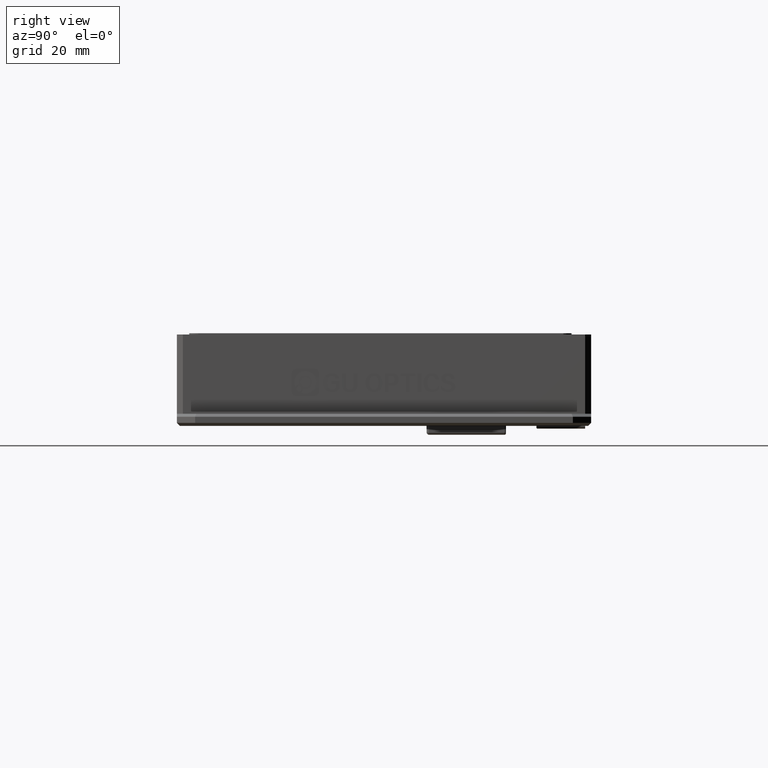
[diagram: clean part render]
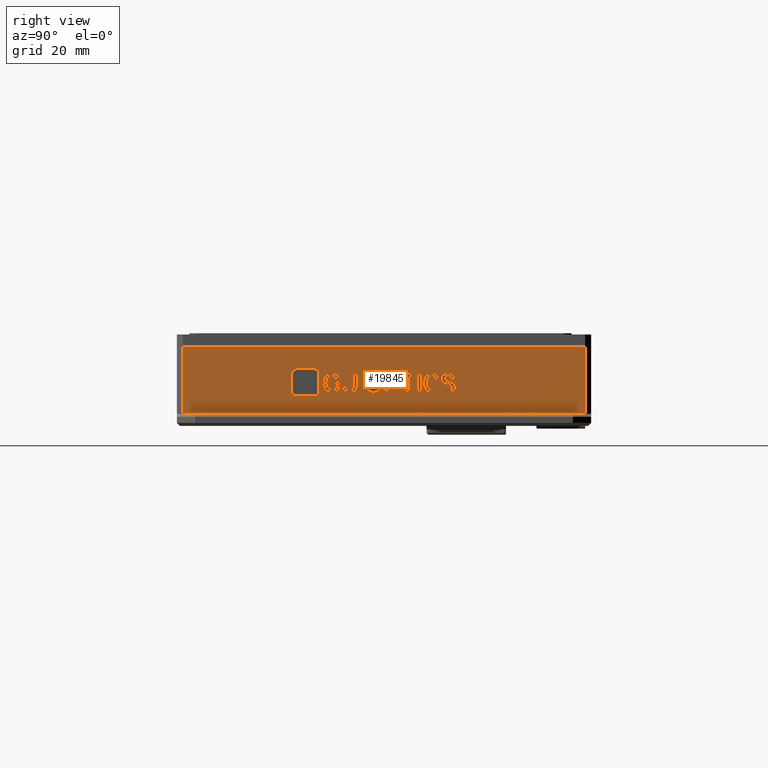
[diagram: same view with one face highlighted and labeled with its STEP entity id]
A machine part, right view. The second image highlights one B-rep face of the part: STEP entity #19845.
In plain terms, the highlighted planar face has unit normal (-1, 0, 0).
Its self-contained STEP definition (entity closure, byte-faithful):
#55 = VERTEX_POINT ( 'NONE', #24676 ) ;
#200 = EDGE_CURVE ( 'NONE', #1160, #15417, #12628, .T. ) ;
#353 = CARTESIAN_POINT ( 'NONE',  ( 24.74226804123710700, 10.97630048354193000, 5.674703011656002400 ) ) ;
#411 = CARTESIAN_POINT ( 'NONE',  ( 24.74226804123710700, 10.68116797948570700, 3.511912313981601800 ) ) ;
#421 = VECTOR ( 'NONE', #28331, 1000.000000000000000 ) ;
#524 = LINE ( 'NONE', #4742, #7741 ) ;
#553 = VERTEX_POINT ( 'NONE', #21872 ) ;
#653 = EDGE_CURVE ( 'NONE', #13729, #15603, #24075, .T. ) ;
#712 = CARTESIAN_POINT ( 'NONE',  ( 24.74226804123710700, -9.694819040525381100, 3.963007500569014400 ) ) ;
#823 = CARTESIAN_POINT ( 'NONE',  ( 24.74226804123710700, 2.931708812368489300, 6.149121616307198200 ) ) ;
#952 = VECTOR ( 'NONE', #27899, 1000.000000000000000 ) ;
#975 = B_SPLINE_CURVE_WITH_KNOTS ( 'NONE', 3,
 ( #4790, #23116, #7872, #29359 ),
 .UNSPECIFIED., .F., .F.,
 ( 4, 4 ),
 ( 10.00000000000000000, 11.00000000000000000 ),
 .UNSPECIFIED. ) ;
#1034 = ORIENTED_EDGE ( 'NONE', *, *, #25771, .F. ) ;
#1150 = CARTESIAN_POINT ( 'NONE',  ( 24.74226804123710700, 9.830816438111909900, 6.609586732586237200 ) ) ;
#1158 = CARTESIAN_POINT ( 'NONE',  ( 24.74226804123710700, 10.41653845001022600, 4.363075104679277900 ) ) ;
#1160 = VERTEX_POINT ( 'NONE', #30057 ) ;
#1291 = CARTESIAN_POINT ( 'NONE',  ( 24.74226804123710700, -6.297387996717750600, 3.511912313981664400 ) ) ;
#1318 = CARTESIAN_POINT ( 'NONE',  ( 24.74226804123710700, 8.333818060610623100, 4.586330918632764800 ) ) ;
#1326 = CARTESIAN_POINT ( 'NONE',  ( 24.74226804123710700, -11.61454908748282100, 7.363286283441060400 ) ) ;
#1367 = ORIENTED_EDGE ( 'NONE', *, *, #8392, .F. ) ;
#1368 = VERTEX_POINT ( 'NONE', #37059 ) ;
#1419 = VECTOR ( 'NONE', #7913, 1000.000000000000000 ) ;
#1420 = CARTESIAN_POINT ( 'NONE',  ( 24.74226804123710700, 5.457046832919928600, 6.567726267469969200 ) ) ;
#1428 = ORIENTED_EDGE ( 'NONE', *, *, #25622, .F. ) ;
#1463 = ORIENTED_EDGE ( 'NONE', *, *, #200, .F. ) ;
#1475 = VERTEX_POINT ( 'NONE', #10273 ) ;
#1519 = VECTOR ( 'NONE', #32084, 1000.000000000000000 ) ;
#1533 = CARTESIAN_POINT ( 'NONE',  ( 24.74226804123710700, -2.301173826896210500, 3.511912313981647000 ) ) ;
#1567 = CARTESIAN_POINT ( 'NONE',  ( 24.74226804123710700, 9.830816438111909900, 6.609586732586237200 ) ) ;
#1595 = EDGE_LOOP ( 'NONE', ( #5593, #33710, #18649, #28209, #18444, #36773, #33213, #28446, #23764, #20439 ) ) ;
#1742 = EDGE_CURVE ( 'NONE', #17232, #21219, #21145, .T. ) ;
#1804 = EDGE_CURVE ( 'NONE', #7755, #27468, #8218, .T. ) ;
#1842 = EDGE_CURVE ( 'NONE', #24166, #9956, #33244, .T. ) ;
#1858 = DIRECTION ( 'NONE',  ( -0.0000000000000000000, -1.000000000000000000, 0.0000000000000000000 ) ) ;
#1859 = CARTESIAN_POINT ( 'NONE',  ( 24.74226804123710700, -6.922212226030724800, 6.567726267470011000 ) ) ;
#1904 = ORIENTED_EDGE ( 'NONE', *, *, #16454, .F. ) ;
#1992 = CARTESIAN_POINT ( 'NONE',  ( 24.74226804123710700, -6.922212226030731900, 4.684005337237489500 ) ) ;
#2041 = CARTESIAN_POINT ( 'NONE',  ( 24.74226804123710700, 8.711292371048839900, 4.070051848865314300 ) ) ;
#2231 = DIRECTION ( 'NONE',  ( -0.0000000000000000000, 3.661440193980301600E-015, 1.000000000000000000 ) ) ;
#2303 = LINE ( 'NONE', #11001, #23857 ) ;
#2313 = CARTESIAN_POINT ( 'NONE',  ( 24.74226804123710700, -5.629243053505096100, 4.153772779097902700 ) ) ;
#2416 = CARTESIAN_POINT ( 'NONE',  ( 24.74226804123710700, 10.41653845001022900, 4.604867965685216700 ) ) ;
#2425 = ORIENTED_EDGE ( 'NONE', *, *, #18802, .F. ) ;
#2584 = ORIENTED_EDGE ( 'NONE', *, *, #7610, .F. ) ;
#2599 = CARTESIAN_POINT ( 'NONE',  ( 24.74226804123710700, 10.37751735752790500, 5.674703011656006000 ) ) ;
#2627 = CARTESIAN_POINT ( 'NONE',  ( 24.74226804123710700, -3.694007791201212100, 5.046796034911871200 ) ) ;
#2635 = B_SPLINE_CURVE_WITH_KNOTS ( 'NONE', 3,
 ( #7557, #25970, #32177, #13693 ),
 .UNSPECIFIED., .F., .F.,
 ( 4, 4 ),
 ( 6.000000000000000000, 7.000000000000000000 ),
 .UNSPECIFIED. ) ;
#2712 = LINE ( 'NONE', #12600, #26270 ) ;
#2756 = EDGE_CURVE ( 'NONE', #15417, #19678, #39628, .T. ) ;
#2760 = CARTESIAN_POINT ( 'NONE',  ( 24.74226804123710700, 2.007533582514382100, 6.149121616307200000 ) ) ;
#2818 = B_SPLINE_CURVE_WITH_KNOTS ( 'NONE', 3,
 ( #22284, #7032, #10096, #31658 ),
 .UNSPECIFIED., .F., .F.,
 ( 4, 4 ),
 ( 4.000000000000000000, 5.000000000000000000 ),
 .UNSPECIFIED. ) ;
#2851 = EDGE_LOOP ( 'NONE', ( #19212, #14346, #20573, #27251, #6056, #1904, #25877, #18961, #6254, #10234, #6869, #27369, #32773, #19672 ) ) ;
#2870 = B_SPLINE_CURVE_WITH_KNOTS ( 'NONE', 3,
 ( #34916, #16406, #4263, #25747 ),
 .UNSPECIFIED., .F., .F.,
 ( 4, 4 ),
 ( 12.00000000000000000, 13.00000000000000000 ),
 .UNSPECIFIED. ) ;
#2883 = CARTESIAN_POINT ( 'NONE',  ( 24.74226804123710700, 6.320459488409421000, 3.558559150109266200 ) ) ;
#2895 = B_SPLINE_CURVE_WITH_KNOTS ( 'NONE', 3,
 ( #33251, #11685, #20916, #2599 ),
 .UNSPECIFIED., .F., .F.,
 ( 4, 4 ),
 ( 8.000000000000000000, 9.000000000000000000 ),
 .UNSPECIFIED. ) ;
#2935 = LINE ( 'NONE', #9237, #19237 ) ;
#2938 = EDGE_CURVE ( 'NONE', #39824, #18967, #15965, .T. ) ;
#3069 = B_SPLINE_CURVE_WITH_KNOTS ( 'NONE', 3,
 ( #2041, #20341, #26577, #8177 ),
 .UNSPECIFIED., .F., .F.,
 ( 4, 4 ),
 ( 13.00000000000000000, 14.00000000000000000 ),
 .UNSPECIFIED. ) ;
#3152 = B_SPLINE_CURVE_WITH_KNOTS ( 'NONE', 3,
 ( #24207, #18021, #11980, #33572 ),
 .UNSPECIFIED., .F., .F.,
 ( 4, 4 ),
 ( 9.000000000000000000, 10.00000000000000000 ),
 .UNSPECIFIED. ) ;
#3161 = VERTEX_POINT ( 'NONE', #13540 ) ;
#3247 = CARTESIAN_POINT ( 'NONE',  ( 24.74226804123710700, -8.710043486171430900, 6.037493709330505900 ) ) ;
#3299 = CARTESIAN_POINT ( 'NONE',  ( 24.74226804123710700, -8.536355005911765700, 4.377028593051448100 ) ) ;
#3389 = VERTEX_POINT ( 'NONE', #28660 ) ;
#3414 = CARTESIAN_POINT ( 'NONE',  ( 24.74226804123710700, 4.845202592790196100, 3.567726267469968300 ) ) ;
#3522 = CARTESIAN_POINT ( 'NONE',  ( 24.74226804123710700, 11.06294191134071900, 3.809721940806910300 ) ) ;
#3747 = VERTEX_POINT ( 'NONE', #34592 ) ;
#3826 = ORIENTED_EDGE ( 'NONE', *, *, #5304, .F. ) ;
#3864 = EDGE_CURVE ( 'NONE', #34392, #17232, #20010, .T. ) ;
#4066 = B_SPLINE_CURVE_WITH_KNOTS ( 'NONE', 3,
 ( #15166, #36749, #18258, #39838 ),
 .UNSPECIFIED., .F., .F.,
 ( 4, 4 ),
 ( 2.000000000000000000, 3.000000000000000000 ),
 .UNSPECIFIED. ) ;
#4075 = CARTESIAN_POINT ( 'NONE',  ( 24.74226804123710700, -15.53402110797153000, 2.889175883092794700 ) ) ;
#4128 = CARTESIAN_POINT ( 'NONE',  ( 24.74226804123710700, 1.725381067641309100, 4.921214639562987400 ) ) ;
#4263 = CARTESIAN_POINT ( 'NONE',  ( 24.74226804123710700, -10.58451617411081900, 6.051447197702602300 ) ) ;
#4269 = DIRECTION ( 'NONE',  ( -0.0000000000000000000, -2.589560916236730000E-015, -1.000000000000000000 ) ) ;
#4284 = CARTESIAN_POINT ( 'NONE',  ( 24.74226804123710700, 8.711292371048843500, 4.600284407004855000 ) ) ;
#4317 = EDGE_CURVE ( 'NONE', #27468, #13729, #21530, .T. ) ;
#4436 = DIRECTION ( 'NONE',  ( -0.0000000000000000000, -1.000000000000000000, -0.0000000000000000000 ) ) ;
#4456 = CARTESIAN_POINT ( 'NONE',  ( 24.74226804123710700, 9.882898644710039100, 4.823540220958356900 ) ) ;
#4460 = CARTESIAN_POINT ( 'NONE',  ( 24.74226804123710700, -2.301173826896199900, 6.609586732586278900 ) ) ;
#4520 = CARTESIAN_POINT ( 'NONE',  ( 24.74226804123710700, 10.87213607034554600, 6.279286570336375400 ) ) ;
#4541 = CARTESIAN_POINT ( 'NONE',  ( 24.74226804123710700, -11.33718918263293700, 6.547580355802841400 ) ) ;
#4579 = B_SPLINE_CURVE_WITH_KNOTS ( 'NONE', 3,
 ( #33552, #39691, #2883, #24331 ),
 .UNSPECIFIED., .F., .F.,
 ( 4, 4 ),
 ( 7.000000000000000000, 8.000000000000000000 ),
 .UNSPECIFIED. ) ;
#4681 = CARTESIAN_POINT ( 'NONE',  ( 24.74226804123710700, -5.646522664105479100, 4.684005337237484100 ) ) ;
#4742 = CARTESIAN_POINT ( 'NONE',  ( 24.74226804123710700, -33.64910271095834600, 10.99999999999545100 ) ) ;
#4759 = DIRECTION ( 'NONE',  ( -0.0000000000000000000, 3.469446951953609500E-015, 1.000000000000000000 ) ) ;
#4790 = CARTESIAN_POINT ( 'NONE',  ( 24.74226804123710700, -9.187139213591713400, 3.511912313981671000 ) ) ;
#4809 = ORIENTED_EDGE ( 'NONE', *, *, #31363, .F. ) ;
#5057 = VERTEX_POINT ( 'NONE', #31695 ) ;
#5119 = CARTESIAN_POINT ( 'NONE',  ( 24.74226804123710700, -12.15286247251812500, 2.889175883092789400 ) ) ;
#5163 = EDGE_LOOP ( 'NONE', ( #22088, #35830, #35246, #32543, #20602, #3826, #6104, #31780, #39175, #27359, #13494, #36908, #5590, #32759 ) ) ;
#5203 = DIRECTION ( 'NONE',  ( -0.0000000000000000000, -0.0000000000000000000, -1.000000000000000000 ) ) ;
#5283 = CARTESIAN_POINT ( 'NONE',  ( 24.74226804123710700, 6.767295616045942100, 3.953637570877221600 ) ) ;
#5304 = EDGE_CURVE ( 'NONE', #20469, #31322, #30339, .T. ) ;
#5334 = DIRECTION ( 'NONE',  ( -0.0000000000000000000, 1.000000000000000000, -5.794162863354228400E-015 ) ) ;
#5412 = CARTESIAN_POINT ( 'NONE',  ( 24.74226804123710700, 8.776435691762458200, 5.786330918632757800 ) ) ;
#5414 = CARTESIAN_POINT ( 'NONE',  ( 24.74226804123710700, 2.931708812368479600, 3.567726267469973700 ) ) ;
#5427 = CARTESIAN_POINT ( 'NONE',  ( 24.74226804123710700, -11.33718918263292800, 6.547580355802841400 ) ) ;
#5590 = ORIENTED_EDGE ( 'NONE', *, *, #33288, .F. ) ;
#5593 = ORIENTED_EDGE ( 'NONE', *, *, #20404, .F. ) ;
#5624 = CARTESIAN_POINT ( 'NONE',  ( 24.74226804123710700, 10.23863147326620500, 4.758356337778248100 ) ) ;
#5695 = B_SPLINE_CURVE_WITH_KNOTS ( 'NONE', 3,
 ( #22130, #712, #6890, #28358 ),
 .UNSPECIFIED., .F., .F.,
 ( 4, 4 ),
 ( 3.000000000000000000, 4.000000000000000000 ),
 .UNSPECIFIED. ) ;
#5719 = B_SPLINE_CURVE_WITH_KNOTS ( 'NONE', 3,
 ( #1158, #19486, #25740, #7336 ),
 .UNSPECIFIED., .F., .F.,
 ( 4, 4 ),
 ( 2.000000000000000000, 3.000000000000000000 ),
 .UNSPECIFIED. ) ;
#5759 = DIRECTION ( 'NONE',  ( -0.0000000000000000000, -0.0000000000000000000, -1.000000000000000000 ) ) ;
#5766 = EDGE_CURVE ( 'NONE', #55, #7731, #33738, .T. ) ;
#5816 = LINE ( 'NONE', #7736, #28397 ) ;
#5905 = LINE ( 'NONE', #16852, #37669 ) ;
#5906 = LINE ( 'NONE', #15671, #29454 ) ;
#5913 = ORIENTED_EDGE ( 'NONE', *, *, #16980, .F. ) ;
#5958 = FACE_BOUND ( 'NONE', #36413, .T. ) ;
#6056 = ORIENTED_EDGE ( 'NONE', *, *, #25734, .F. ) ;
#6104 = ORIENTED_EDGE ( 'NONE', *, *, #17760, .F. ) ;
#6146 = CARTESIAN_POINT ( 'NONE',  ( 24.74226804123710700, 7.201314004363863000, 6.177028593051348400 ) ) ;
#6254 = ORIENTED_EDGE ( 'NONE', *, *, #30327, .F. ) ;
#6277 = EDGE_CURVE ( 'NONE', #19176, #35863, #2818, .T. ) ;
#6301 = CARTESIAN_POINT ( 'NONE',  ( 24.74226804123710700, 0.09395867716011172000, 4.614237895376960300 ) ) ;
#6333 = CARTESIAN_POINT ( 'NONE',  ( 24.74226804123710700, 8.398961381324349800, 5.618889058167667400 ) ) ;
#6615 = CARTESIAN_POINT ( 'NONE',  ( 24.74226804123710700, 11.05442379343901900, 4.404935569795545900 ) ) ;
#6869 = ORIENTED_EDGE ( 'NONE', *, *, #3864, .F. ) ;
#6890 = CARTESIAN_POINT ( 'NONE',  ( 24.74226804123710700, -9.968210062699544200, 4.344335245295864600 ) ) ;
#6928 = FACE_BOUND ( 'NONE', #5163, .T. ) ;
#6998 = VERTEX_POINT ( 'NONE', #823 ) ;
#7032 = CARTESIAN_POINT ( 'NONE',  ( 24.74226804123710700, -8.631920176274011400, 4.060681919173667600 ) ) ;
#7066 = EDGE_CURVE ( 'NONE', #12256, #14410, #38401, .T. ) ;
#7069 = CARTESIAN_POINT ( 'NONE',  ( 24.74226804123710700, 1.386927849685749300, 4.595498035993525600 ) ) ;
#7125 = VECTOR ( 'NONE', #33392, 1000.000000000000000 ) ;
#7212 = VERTEX_POINT ( 'NONE', #25989 ) ;
#7274 = CARTESIAN_POINT ( 'NONE',  ( 24.74226804123710700, -14.99555279149055000, 7.363286283441071100 ) ) ;
#7327 = CARTESIAN_POINT ( 'NONE',  ( 24.74226804123710700, 8.802476795061638300, 6.325730594133034400 ) ) ;
#7336 = CARTESIAN_POINT ( 'NONE',  ( 24.74226804123710700, 9.817755323996202300, 3.902609988400191000 ) ) ;
#7369 = EDGE_CURVE ( 'NONE', #25858, #55, #27483, .T. ) ;
#7397 = EDGE_CURVE ( 'NONE', #20332, #33225, #21004, .T. ) ;
#7434 = EDGE_LOOP ( 'NONE', ( #5913, #18724, #4809, #13441 ) ) ;
#7459 = CARTESIAN_POINT ( 'NONE',  ( 24.74226804123710700, 8.259994372130325500, 6.269916640644648700 ) ) ;
#7500 = CARTESIAN_POINT ( 'NONE',  ( 24.74226804123710700, 7.162292911881428000, 6.609586732586246100 ) ) ;
#7532 = CARTESIAN_POINT ( 'NONE',  ( 24.74226804123710700, -3.650687077301755700, 6.051447197702578300 ) ) ;
#7557 = CARTESIAN_POINT ( 'NONE',  ( 24.74226804123710700, 7.188334015180593000, 3.511912313981614200 ) ) ;
#7610 = EDGE_CURVE ( 'NONE', #34112, #1475, #8687, .T. ) ;
#7655 = VERTEX_POINT ( 'NONE', #39491 ) ;
#7657 = CARTESIAN_POINT ( 'NONE',  ( 24.74226804123710700, 9.843796427295387700, 6.177028593051340400 ) ) ;
#7688 = CARTESIAN_POINT ( 'NONE',  ( 24.74226804123710700, -1.416019689524652800, 3.567726267469989200 ) ) ;
#7731 = VERTEX_POINT ( 'NONE', #6146 ) ;
#7736 = CARTESIAN_POINT ( 'NONE',  ( 24.74226804123710700, -7.950551869081331300, 5.297958825609574000 ) ) ;
#7741 = VECTOR ( 'NONE', #7810, 1000.000000000000000 ) ;
#7754 = CARTESIAN_POINT ( 'NONE',  ( 24.74226804123710700, -15.53402110797151500, 7.363286283441071100 ) ) ;
#7755 = VERTEX_POINT ( 'NONE', #33853 ) ;
#7757 = DIRECTION ( 'NONE',  ( -0.0000000000000000000, -3.469446951953611000E-015, -1.000000000000000000 ) ) ;
#7810 = DIRECTION ( 'NONE',  ( 0.0000000000000000000, 0.0000000000000000000, 1.000000000000000000 ) ) ;
#7872 = CARTESIAN_POINT ( 'NONE',  ( 24.74226804123710700, -8.124240349340786000, 3.735168127935161400 ) ) ;
#7899 = ORIENTED_EDGE ( 'NONE', *, *, #13501, .F. ) ;
#7913 = DIRECTION ( 'NONE',  ( -0.0000000000000000000, -4.010382229408812500E-015, -1.000000000000000000 ) ) ;
#8030 = CARTESIAN_POINT ( 'NONE',  ( 24.74226804123710700, -7.547036455344157300, 4.837493709330507500 ) ) ;
#8051 = EDGE_CURVE ( 'NONE', #8053, #37029, #32886, .T. ) ;
#8053 = VERTEX_POINT ( 'NONE', #1992 ) ;
#8075 = LINE ( 'NONE', #27156, #7125 ) ;
#8086 = ORIENTED_EDGE ( 'NONE', *, *, #16321, .F. ) ;
#8177 = CARTESIAN_POINT ( 'NONE',  ( 24.74226804123710700, 9.908858623076778100, 3.511912313981603500 ) ) ;
#8191 = CARTESIAN_POINT ( 'NONE',  ( 24.74226804123710700, 9.414239910259032800, 5.786330918632756100 ) ) ;
#8218 = LINE ( 'NONE', #22588, #24541 ) ;
#8231 = VERTEX_POINT ( 'NONE', #15042 ) ;
#8285 = CARTESIAN_POINT ( 'NONE',  ( 24.74226804123710700, -9.369426936685185200, 4.879354174446770100 ) ) ;
#8392 = EDGE_CURVE ( 'NONE', #16953, #1368, #33998, .T. ) ;
#8511 = CARTESIAN_POINT ( 'NONE',  ( 24.74226804123710700, -10.61907539531159200, 5.074703011656088900 ) ) ;
#8562 = EDGE_CURVE ( 'NONE', #6998, #7655, #14871, .T. ) ;
#8590 = LINE ( 'NONE', #13453, #39410 ) ;
#8645 = VERTEX_POINT ( 'NONE', #9125 ) ;
#8679 = CARTESIAN_POINT ( 'NONE',  ( 24.74226804123710700, 9.882898644710039100, 4.823540220958356900 ) ) ;
#8687 = B_SPLINE_CURVE_WITH_KNOTS ( 'NONE', 3,
 ( #23733, #2313, #29960, #11514 ),
 .UNSPECIFIED., .F., .F.,
 ( 4, 4 ),
 ( 4.000000000000000000, 5.000000000000000000 ),
 .UNSPECIFIED. ) ;
#8742 = B_SPLINE_CURVE_WITH_KNOTS ( 'NONE', 3,
 ( #11581, #14659, #36222, #17743 ),
 .UNSPECIFIED., .F., .F.,
 ( 4, 4 ),
 ( 3.000000000000000000, 4.000000000000000000 ),
 .UNSPECIFIED. ) ;
#8744 = CARTESIAN_POINT ( 'NONE',  ( 24.74226804123710700, 0.09395867716010739000, 3.567726267469983900 ) ) ;
#8847 = EDGE_CURVE ( 'NONE', #11918, #3389, #12018, .T. ) ;
#8870 = CARTESIAN_POINT ( 'NONE',  ( 24.74226804123710700, 9.908858623076779900, 5.353772779097870900 ) ) ;
#8914 = EDGE_CURVE ( 'NONE', #9956, #25858, #15340, .T. ) ;
#8928 = ORIENTED_EDGE ( 'NONE', *, *, #28105, .F. ) ;
#8998 = CARTESIAN_POINT ( 'NONE',  ( 24.74226804123710700, 9.414239910259032800, 5.786330918632756100 ) ) ;
#9032 = EDGE_CURVE ( 'NONE', #35231, #12633, #14802, .T. ) ;
#9067 = LINE ( 'NONE', #6301, #952 ) ;
#9125 = CARTESIAN_POINT ( 'NONE',  ( 24.74226804123710700, -9.226241431006469500, 6.609586732586302900 ) ) ;
#9140 = CARTESIAN_POINT ( 'NONE',  ( 24.74226804123710700, -8.536355005911765700, 4.879354174446766600 ) ) ;
#9237 = CARTESIAN_POINT ( 'NONE',  ( 24.74226804123710700, -7.547036455344150200, 6.567726267470014500 ) ) ;
#9374 = DIRECTION ( 'NONE',  ( -0.0000000000000000000, 1.000000000000000000, -2.835613054927432900E-015 ) ) ;
#9521 = VERTEX_POINT ( 'NONE', #35868 ) ;
#9528 = VECTOR ( 'NONE', #31916, 1000.000000000000000 ) ;
#9719 = CARTESIAN_POINT ( 'NONE',  ( 24.74226804123710700, -15.81129946995563200, 3.704889965018110000 ) ) ;
#9835 = ORIENTED_EDGE ( 'NONE', *, *, #8562, .F. ) ;
#9934 = ORIENTED_EDGE ( 'NONE', *, *, #26232, .F. ) ;
#9956 = VERTEX_POINT ( 'NONE', #1318 ) ;
#10008 = CARTESIAN_POINT ( 'NONE',  ( 24.74226804123710700, -9.369426936685185200, 4.879354174446770100 ) ) ;
#10096 = CARTESIAN_POINT ( 'NONE',  ( 24.74226804123710700, -8.844467499151464900, 3.907193547080651400 ) ) ;
#10206 = ORIENTED_EDGE ( 'NONE', *, *, #12657, .F. ) ;
#10215 = CARTESIAN_POINT ( 'NONE',  ( 24.74226804123710700, -15.81129946995563200, 3.704889965018110000 ) ) ;
#10234 = ORIENTED_EDGE ( 'NONE', *, *, #1742, .F. ) ;
#10273 = CARTESIAN_POINT ( 'NONE',  ( 24.74226804123710700, -6.284408007534272800, 3.916563476772336700 ) ) ;
#10390 = VERTEX_POINT ( 'NONE', #29065 ) ;
#10468 = B_SPLINE_CURVE_WITH_KNOTS ( 'NONE', 3,
 ( #32059, #31930, #38259, #19747 ),
 .UNSPECIFIED., .F., .F.,
 ( 4, 4 ),
 ( 3.000000000000000000, 4.000000000000000000 ),
 .UNSPECIFIED. ) ;
#10492 = CARTESIAN_POINT ( 'NONE',  ( 24.74226804123710700, 8.711292371048839900, 4.070051848865314300 ) ) ;
#10516 = CARTESIAN_POINT ( 'NONE',  ( 24.74226804123710700, -4.978377720892821900, 3.916563476772331400 ) ) ;
#10571 = CARTESIAN_POINT ( 'NONE',  ( 24.74226804123710700, 3.556533041681359600, 6.149121616307194700 ) ) ;
#10588 = ORIENTED_EDGE ( 'NONE', *, *, #23720, .F. ) ;
#10614 = PLANE ( 'NONE',  #27006 ) ;
#10683 = VECTOR ( 'NONE', #19729, 1000.000000000000000 ) ;
#10761 = CARTESIAN_POINT ( 'NONE',  ( 24.74226804123710700, -0.9083398625911983700, 5.046796034911860600 ) ) ;
#10826 = CARTESIAN_POINT ( 'NONE',  ( 24.74226804123710700, -12.15286247251812500, 2.889175883092789400 ) ) ;
#10834 = CARTESIAN_POINT ( 'NONE',  ( 24.74226804123710700, -15.81129946995562500, 6.384453847991425200 ) ) ;
#10888 = CARTESIAN_POINT ( 'NONE',  ( 24.74226804123710700, 7.331519520859418800, 3.916563476772287900 ) ) ;
#10947 = DIRECTION ( 'NONE',  ( -0.0000000000000000000, 1.000000000000000000, -2.665589385091461400E-015 ) ) ;
#11001 = CARTESIAN_POINT ( 'NONE',  ( 24.74226804123710700, 4.480708271535355900, 6.149121616307191100 ) ) ;
#11006 = EDGE_CURVE ( 'NONE', #13864, #20332, #3069, .T. ) ;
#11192 = EDGE_LOOP ( 'NONE', ( #12420, #15865, #11829, #31842, #2425, #9835, #8086, #19500 ) ) ;
#11201 = CARTESIAN_POINT ( 'NONE',  ( 24.74226804123710700, 1.378247481919178100, 6.567726267469983400 ) ) ;
#11257 = CARTESIAN_POINT ( 'NONE',  ( 24.74226804123710700, 3.556533041681349900, 3.567726267469971900 ) ) ;
#11514 = CARTESIAN_POINT ( 'NONE',  ( 24.74226804123710700, -6.284408007534272800, 3.916563476772336700 ) ) ;
#11581 = CARTESIAN_POINT ( 'NONE',  ( 24.74226804123710700, -6.284408007534272800, 3.916563476772336700 ) ) ;
#11618 = LINE ( 'NONE', #10492, #10683 ) ;
#11685 = CARTESIAN_POINT ( 'NONE',  ( 24.74226804123710700, 10.10412633535352000, 6.167658663359630600 ) ) ;
#11725 = VERTEX_POINT ( 'NONE', #29983 ) ;
#11829 = ORIENTED_EDGE ( 'NONE', *, *, #36427, .F. ) ;
#11855 = VECTOR ( 'NONE', #36989, 1000.000000000000000 ) ;
#11884 = CARTESIAN_POINT ( 'NONE',  ( 24.74226804123710700, -8.536355005911765700, 4.377028593051448100 ) ) ;
#11918 = VERTEX_POINT ( 'NONE', #27787 ) ;
#11980 = CARTESIAN_POINT ( 'NONE',  ( 24.74226804123710700, 9.548663923239059800, 6.177028593051340400 ) ) ;
#11988 = CARTESIAN_POINT ( 'NONE',  ( 24.74226804123710700, -9.174159224408340300, 3.916563476772347000 ) ) ;
#12018 = B_SPLINE_CURVE_WITH_KNOTS ( 'NONE', 3,
 ( #1533, #7688, #29169, #10761 ),
 .UNSPECIFIED., .F., .F.,
 ( 4, 4 ),
 ( 0.0000000000000000000, 1.000000000000000000 ),
 .UNSPECIFIED. ) ;
#12034 = VECTOR ( 'NONE', #37745, 1000.000000000000000 ) ;
#12117 = VERTEX_POINT ( 'NONE', #7274 ) ;
#12119 = EDGE_LOOP ( 'NONE', ( #30230, #36593, #12309, #32040 ) ) ;
#12210 = DIRECTION ( 'NONE',  ( -0.0000000000000000000, 1.000000000000000000, -1.877050390379598600E-015 ) ) ;
#12256 = VERTEX_POINT ( 'NONE', #26454 ) ;
#12263 = CARTESIAN_POINT ( 'NONE',  ( 24.74226804123710700, -8.575376098394420100, 6.609586732586301100 ) ) ;
#12309 = ORIENTED_EDGE ( 'NONE', *, *, #15700, .F. ) ;
#12365 = CARTESIAN_POINT ( 'NONE',  ( 24.74226804123710700, -2.301173826896210500, 3.511912313981647000 ) ) ;
#12420 = ORIENTED_EDGE ( 'NONE', *, *, #17135, .F. ) ;
#12493 = ORIENTED_EDGE ( 'NONE', *, *, #33873, .F. ) ;
#12499 = DIRECTION ( 'NONE',  ( -0.0000000000000000000, -1.000000000000000000, 4.299026547488990100E-015 ) ) ;
#12554 = EDGE_CURVE ( 'NONE', #9521, #16953, #18184, .T. ) ;
#12600 = CARTESIAN_POINT ( 'NONE',  ( 24.74226804123710700, 2.007533582514382100, 6.149121616307200000 ) ) ;
#12628 = LINE ( 'NONE', #5427, #29021 ) ;
#12633 = VERTEX_POINT ( 'NONE', #10571 ) ;
#12657 = EDGE_CURVE ( 'NONE', #30386, #15942, #5905, .T. ) ;
#12924 = ORIENTED_EDGE ( 'NONE', *, *, #32505, .F. ) ;
#12979 = CARTESIAN_POINT ( 'NONE',  ( 24.74226804123710700, -5.646522664105472000, 6.567726267470007400 ) ) ;
#13129 = FACE_OUTER_BOUND ( 'NONE', #12119, .T. ) ;
#13273 = LINE ( 'NONE', #37481, #36872 ) ;
#13339 = CARTESIAN_POINT ( 'NONE',  ( 24.74226804123710700, -5.021698434792490700, 6.567726267470005700 ) ) ;
#13441 = ORIENTED_EDGE ( 'NONE', *, *, #8847, .F. ) ;
#13453 = CARTESIAN_POINT ( 'NONE',  ( 24.74226804123710700, 2.007533582514383900, 6.567726267469979900 ) ) ;
#13494 = ORIENTED_EDGE ( 'NONE', *, *, #37713, .F. ) ;
#13501 = EDGE_CURVE ( 'NONE', #15603, #1160, #36323, .T. ) ;
#13534 = B_SPLINE_CURVE_WITH_KNOTS ( 'NONE', 3,
 ( #28560, #7069, #4128, #25615 ),
 .UNSPECIFIED., .F., .F.,
 ( 4, 4 ),
 ( 6.000000000000000000, 7.000000000000000000 ),
 .UNSPECIFIED. ) ;
#13540 = CARTESIAN_POINT ( 'NONE',  ( 24.74226804123710700, 7.162292911881428000, 6.609586732586246100 ) ) ;
#13588 = CARTESIAN_POINT ( 'NONE',  ( 24.74226804123710700, 7.162292911881428000, 6.609586732586246100 ) ) ;
#13595 = DIRECTION ( 'NONE',  ( -0.0000000000000000000, 4.144061637055817500E-015, 1.000000000000000000 ) ) ;
#13693 = CARTESIAN_POINT ( 'NONE',  ( 24.74226804123710700, 8.333818060610621400, 4.014237895376927800 ) ) ;
#13729 = VERTEX_POINT ( 'NONE', #28897 ) ;
#13731 = CARTESIAN_POINT ( 'NONE',  ( 24.74226804123710700, 10.97630048354193000, 5.674703011656002400 ) ) ;
#13739 = ORIENTED_EDGE ( 'NONE', *, *, #12554, .F. ) ;
#13770 = VERTEX_POINT ( 'NONE', #35264 ) ;
#13826 = DIRECTION ( 'NONE',  ( -1.000000000000000000, 0.0000000000000000000, 0.0000000000000000000 ) ) ;
#13864 = VERTEX_POINT ( 'NONE', #29561 ) ;
#13881 = DIRECTION ( 'NONE',  ( -0.0000000000000000000, 3.108046227791703400E-015, 1.000000000000000000 ) ) ;
#13954 = DIRECTION ( 'NONE',  ( -0.0000000000000000000, 1.000000000000000000, -5.670474157308451600E-015 ) ) ;
#13993 = CARTESIAN_POINT ( 'NONE',  ( 24.74226804123710700, -9.226241431006469500, 6.190982081423523900 ) ) ;
#14075 = DIRECTION ( 'NONE',  ( -0.0000000000000000000, 1.000000000000000000, -3.754100780759647700E-015 ) ) ;
#14088 = FACE_BOUND ( 'NONE', #11192, .T. ) ;
#14333 = CARTESIAN_POINT ( 'NONE',  ( 24.74226804123710700, -7.547036455344150200, 6.567726267470014500 ) ) ;
#14337 = CARTESIAN_POINT ( 'NONE',  ( 24.74226804123710700, 3.556533041681359600, 6.149121616307194700 ) ) ;
#14345 = ORIENTED_EDGE ( 'NONE', *, *, #32593, .F. ) ;
#14346 = ORIENTED_EDGE ( 'NONE', *, *, #22947, .F. ) ;
#14410 = VERTEX_POINT ( 'NONE', #25808 ) ;
#14426 = CARTESIAN_POINT ( 'NONE',  ( 24.74226804123710700, -0.5178044380372759400, 6.567726267469989700 ) ) ;
#14475 = VERTEX_POINT ( 'NONE', #23173 ) ;
#14652 = VECTOR ( 'NONE', #1858, 1000.000000000000000 ) ;
#14659 = CARTESIAN_POINT ( 'NONE',  ( 24.74226804123710700, -6.709664903153614200, 3.916563476772338100 ) ) ;
#14660 = B_SPLINE_CURVE_WITH_KNOTS ( 'NONE', 3,
 ( #28932, #7459, #32072, #13588 ),
 .UNSPECIFIED., .F., .F.,
 ( 4, 4 ),
 ( 9.000000000000000000, 10.00000000000000000 ),
 .UNSPECIFIED. ) ;
#14669 = CARTESIAN_POINT ( 'NONE',  ( 24.74226804123710700, -9.187139213591713400, 3.511912313981671000 ) ) ;
#14802 = LINE ( 'NONE', #14337, #28308 ) ;
#14803 = VERTEX_POINT ( 'NONE', #353 ) ;
#14871 = LINE ( 'NONE', #5414, #30323 ) ;
#14883 = B_SPLINE_CURVE_WITH_KNOTS ( 'NONE', 3,
 ( #19704, #35108, #22792, #4456 ),
 .UNSPECIFIED., .F., .F.,
 ( 4, 4 ),
 ( 4.000000000000000000, 5.000000000000000000 ),
 .UNSPECIFIED. ) ;
#15042 = CARTESIAN_POINT ( 'NONE',  ( 24.74226804123710700, -7.950551869081334800, 4.181679755842104400 ) ) ;
#15059 = EDGE_CURVE ( 'NONE', #38875, #20206, #31078, .T. ) ;
#15166 = CARTESIAN_POINT ( 'NONE',  ( 24.74226804123710700, -9.994251165998610600, 5.060749523283996100 ) ) ;
#15242 = LINE ( 'NONE', #30966, #31709 ) ;
#15340 = B_SPLINE_CURVE_WITH_KNOTS ( 'NONE', 3,
 ( #23066, #26233, #29306, #10888 ),
 .UNSPECIFIED., .F., .F.,
 ( 4, 4 ),
 ( 4.000000000000000000, 5.000000000000000000 ),
 .UNSPECIFIED. ) ;
#15417 = VERTEX_POINT ( 'NONE', #22213 ) ;
#15499 = DIRECTION ( 'NONE',  ( -0.0000000000000000000, -1.000000000000000000, 5.552676719604713600E-015 ) ) ;
#15603 = VERTEX_POINT ( 'NONE', #10826 ) ;
#15624 = ORIENTED_EDGE ( 'NONE', *, *, #2756, .F. ) ;
#15671 = CARTESIAN_POINT ( 'NONE',  ( 24.74226804123710700, -0.5178044380372871500, 3.567726267469985700 ) ) ;
#15677 = CARTESIAN_POINT ( 'NONE',  ( 24.74226804123710700, -11.33718918263293700, 3.704889965018094400 ) ) ;
#15700 = EDGE_CURVE ( 'NONE', #12256, #38875, #24665, .T. ) ;
#15747 = CARTESIAN_POINT ( 'NONE',  ( 24.74226804123710700, -7.547036455344157300, 4.837493709330507500 ) ) ;
#15750 = EDGE_CURVE ( 'NONE', #1475, #8053, #8742, .T. ) ;
#15758 = DIRECTION ( 'NONE',  ( -0.0000000000000000000, 1.000000000000000000, -2.776338359804823200E-015 ) ) ;
#15865 = ORIENTED_EDGE ( 'NONE', *, *, #30163, .F. ) ;
#15942 = VERTEX_POINT ( 'NONE', #3414 ) ;
#15965 = LINE ( 'NONE', #6333, #23181 ) ;
#16149 = VERTEX_POINT ( 'NONE', #29192 ) ;
#16256 = CARTESIAN_POINT ( 'NONE',  ( 24.74226804123710700, 10.41653845001022600, 4.363075104679277900 ) ) ;
#16321 = EDGE_CURVE ( 'NONE', #39200, #6998, #31885, .T. ) ;
#16406 = CARTESIAN_POINT ( 'NONE',  ( 24.74226804123710700, -10.12015706107682300, 6.562939896458683400 ) ) ;
#16418 = CARTESIAN_POINT ( 'NONE',  ( 24.74226804123710700, 9.401259921075656200, 3.911777105760927900 ) ) ;
#16435 = VECTOR ( 'NONE', #23399, 1000.000000000000000 ) ;
#16454 = EDGE_CURVE ( 'NONE', #35863, #553, #5695, .T. ) ;
#16521 = DIRECTION ( 'NONE',  ( -0.0000000000000000000, -1.000000000000000000, 3.507078338779844900E-015 ) ) ;
#16684 = CARTESIAN_POINT ( 'NONE',  ( 24.74226804123710700, 6.715213409447701800, 6.158288733667920800 ) ) ;
#16712 = CARTESIAN_POINT ( 'NONE',  ( 24.74226804123710700, 5.864861868074116900, 6.037493709330455300 ) ) ;
#16726 = LINE ( 'NONE', #8030, #1419 ) ;
#16780 = EDGE_CURVE ( 'NONE', #8231, #34392, #5816, .T. ) ;
#16852 = CARTESIAN_POINT ( 'NONE',  ( 24.74226804123710700, 4.845202592790196100, 3.567726267469968300 ) ) ;
#16876 = B_SPLINE_CURVE_WITH_KNOTS ( 'NONE', 3,
 ( #38024, #16418, #22595, #4284 ),
 .UNSPECIFIED., .F., .F.,
 ( 4, 4 ),
 ( 1.000000000000000000, 2.000000000000000000 ),
 .UNSPECIFIED. ) ;
#16913 = CARTESIAN_POINT ( 'NONE',  ( 24.74226804123710700, 9.882898644710039100, 4.823540220958356900 ) ) ;
#16953 = VERTEX_POINT ( 'NONE', #39311 ) ;
#16980 = EDGE_CURVE ( 'NONE', #19353, #11918, #24450, .T. ) ;
#17135 = EDGE_CURVE ( 'NONE', #28841, #22299, #8590, .T. ) ;
#17232 = VERTEX_POINT ( 'NONE', #29064 ) ;
#17276 = DIRECTION ( 'NONE',  ( -0.0000000000000000000, 1.000000000000000000, -3.051200238729955900E-015 ) ) ;
#17293 = CARTESIAN_POINT ( 'NONE',  ( 24.74226804123710700, -9.187139213591713400, 3.511912313981671000 ) ) ;
#17371 = EDGE_CURVE ( 'NONE', #14475, #34112, #28277, .T. ) ;
#17481 = CARTESIAN_POINT ( 'NONE',  ( 24.74226804123710700, 10.97630048354193000, 5.674703011656002400 ) ) ;
#17516 = ORIENTED_EDGE ( 'NONE', *, *, #1804, .F. ) ;
#17570 = CARTESIAN_POINT ( 'NONE',  ( 24.74226804123710700, 6.459345372671234200, 5.032842546539744600 ) ) ;
#17743 = CARTESIAN_POINT ( 'NONE',  ( 24.74226804123710700, -6.922212226030731900, 4.684005337237489500 ) ) ;
#17760 = EDGE_CURVE ( 'NONE', #31583, #20469, #14883, .T. ) ;
#18021 = CARTESIAN_POINT ( 'NONE',  ( 24.74226804123710700, 9.405478417560237500, 6.046660826691137900 ) ) ;
#18080 = VERTEX_POINT ( 'NONE', #33663 ) ;
#18152 = CARTESIAN_POINT ( 'NONE',  ( 24.74226804123710700, -8.614397190876859500, 5.730516965144459200 ) ) ;
#18184 = B_SPLINE_CURVE_WITH_KNOTS ( 'NONE', 3,
 ( #15747, #34270, #37329, #18835 ),
 .UNSPECIFIED., .F., .F.,
 ( 4, 4 ),
 ( 9.000000000000000000, 10.00000000000000000 ),
 .UNSPECIFIED. ) ;
#18258 = CARTESIAN_POINT ( 'NONE',  ( 24.74226804123710700, -9.712342025922630700, 6.144335245295875000 ) ) ;
#18369 = CARTESIAN_POINT ( 'NONE',  ( 24.74226804123710700, 2.931708812368489300, 6.149121616307198200 ) ) ;
#18390 = VECTOR ( 'NONE', #5759, 1000.000000000000000 ) ;
#18444 = ORIENTED_EDGE ( 'NONE', *, *, #5766, .F. ) ;
#18486 = CARTESIAN_POINT ( 'NONE',  ( 24.74226804123710700, -9.226241431006469500, 6.190982081423523900 ) ) ;
#18649 = ORIENTED_EDGE ( 'NONE', *, *, #2938, .F. ) ;
#18724 = ORIENTED_EDGE ( 'NONE', *, *, #38040, .F. ) ;
#18757 = DIRECTION ( 'NONE',  ( -0.0000000000000000000, -3.758567531283077000E-015, -1.000000000000000000 ) ) ;
#18802 = EDGE_CURVE ( 'NONE', #7655, #35231, #13273, .T. ) ;
#18831 = VERTEX_POINT ( 'NONE', #28589 ) ;
#18835 = CARTESIAN_POINT ( 'NONE',  ( 24.74226804123710700, -6.297387996717750600, 3.511912313981664400 ) ) ;
#18901 = VECTOR ( 'NONE', #31458, 1000.000000000000000 ) ;
#18961 = ORIENTED_EDGE ( 'NONE', *, *, #26670, .F. ) ;
#18967 = VERTEX_POINT ( 'NONE', #26032 ) ;
#19024 = CARTESIAN_POINT ( 'NONE',  ( 24.74226804123710700, 0.6927418031740248900, 4.614237895376958500 ) ) ;
#19053 = VECTOR ( 'NONE', #4436, 1000.000000000000000 ) ;
#19176 = VERTEX_POINT ( 'NONE', #3299 ) ;
#19212 = ORIENTED_EDGE ( 'NONE', *, *, #19317, .F. ) ;
#19237 = VECTOR ( 'NONE', #15499, 1000.000000000000000 ) ;
#19244 = DIRECTION ( 'NONE',  ( -0.0000000000000000000, -1.000000000000000000, 3.661440286475947500E-015 ) ) ;
#19317 = EDGE_CURVE ( 'NONE', #8645, #39556, #2870, .T. ) ;
#19353 = VERTEX_POINT ( 'NONE', #32080 ) ;
#19383 = EDGE_CURVE ( 'NONE', #14803, #36558, #30127, .T. ) ;
#19387 = LINE ( 'NONE', #11884, #18390 ) ;
#19439 = B_SPLINE_CURVE_WITH_KNOTS ( 'NONE', 3,
 ( #1150, #25728, #7327, #28790 ),
 .UNSPECIFIED., .F., .F.,
 ( 4, 4 ),
 ( 5.000000000000000000, 6.000000000000000000 ),
 .UNSPECIFIED. ) ;
#19461 = VERTEX_POINT ( 'NONE', #13993 ) ;
#19486 = CARTESIAN_POINT ( 'NONE',  ( 24.74226804123710700, 10.40777695731154400, 4.056098360493203700 ) ) ;
#19500 = ORIENTED_EDGE ( 'NONE', *, *, #26207, .F. ) ;
#19672 = ORIENTED_EDGE ( 'NONE', *, *, #37155, .F. ) ;
#19678 = VERTEX_POINT ( 'NONE', #25293 ) ;
#19682 = CARTESIAN_POINT ( 'NONE',  ( 24.74226804123710700, 33.35089728904165400, 10.99999999999545100 ) ) ;
#19704 = CARTESIAN_POINT ( 'NONE',  ( 24.74226804123710700, 8.776435691762458200, 5.786330918632757800 ) ) ;
#19729 = DIRECTION ( 'NONE',  ( -0.0000000000000000000, -6.543255216403682400E-015, -1.000000000000000000 ) ) ;
#19747 = CARTESIAN_POINT ( 'NONE',  ( 24.74226804123710700, -2.301173826896199900, 6.609586732586278900 ) ) ;
#19800 = VERTEX_POINT ( 'NONE', #32029 ) ;
#19845 = ADVANCED_FACE ( 'NONE', ( #22237, #23206, #6928, #30467, #14088, #5958, #37731, #29511, #21262, #13129 ), #10614, .F. ) ;
#19868 = LINE ( 'NONE', #12979, #18901 ) ;
#19889 = CARTESIAN_POINT ( 'NONE',  ( 24.74226804123710700, 10.49019988862588300, 6.590846873202776700 ) ) ;
#19921 = VERTEX_POINT ( 'NONE', #14333 ) ;
#20010 = LINE ( 'NONE', #27662, #11855 ) ;
#20045 = VECTOR ( 'NONE', #29986, 1000.000000000000000 ) ;
#20086 = CARTESIAN_POINT ( 'NONE',  ( 24.74226804123710700, 7.188334015180593000, 3.511912313981614200 ) ) ;
#20206 = VERTEX_POINT ( 'NONE', #31169 ) ;
#20312 = CARTESIAN_POINT ( 'NONE',  ( 24.74226804123710700, 1.708101457041149000, 5.590982081423495800 ) ) ;
#20332 = VERTEX_POINT ( 'NONE', #31977 ) ;
#20341 = CARTESIAN_POINT ( 'NONE',  ( 24.74226804123710700, 9.006262625240179200, 3.670187057085962900 ) ) ;
#20404 = EDGE_CURVE ( 'NONE', #3161, #18080, #23913, .T. ) ;
#20439 = ORIENTED_EDGE ( 'NONE', *, *, #24795, .F. ) ;
#20442 = CARTESIAN_POINT ( 'NONE',  ( 24.74226804123710700, 7.787117141194738900, 5.618889058167669100 ) ) ;
#20467 = ORIENTED_EDGE ( 'NONE', *, *, #4317, .F. ) ;
#20469 = VERTEX_POINT ( 'NONE', #16913 ) ;
#20573 = ORIENTED_EDGE ( 'NONE', *, *, #24562, .F. ) ;
#20602 = ORIENTED_EDGE ( 'NONE', *, *, #37452, .F. ) ;
#20662 = CARTESIAN_POINT ( 'NONE',  ( 24.74226804123710700, -5.646522664105479100, 4.684005337237484100 ) ) ;
#20721 = VECTOR ( 'NONE', #5334, 1000.000000000000000 ) ;
#20916 = CARTESIAN_POINT ( 'NONE',  ( 24.74226804123710700, 10.28195218716543900, 6.000216802894510900 ) ) ;
#21004 = B_SPLINE_CURVE_WITH_KNOTS ( 'NONE', 3,
 ( #32135, #411, #3522, #6615 ),
 .UNSPECIFIED., .F., .F.,
 ( 4, 4 ),
 ( 12.00000000000000000, 13.00000000000000000 ),
 .UNSPECIFIED. ) ;
#21086 = B_SPLINE_CURVE_WITH_KNOTS ( 'NONE', 3,
 ( #20312, #23416, #11201, #32786 ),
 .UNSPECIFIED., .F., .F.,
 ( 4, 4 ),
 ( 5.000000000000000000, 6.000000000000000000 ),
 .UNSPECIFIED. ) ;
#21145 = LINE ( 'NONE', #10008, #12034 ) ;
#21219 = VERTEX_POINT ( 'NONE', #8285 ) ;
#21262 = FACE_BOUND ( 'NONE', #2851, .T. ) ;
#21368 = CARTESIAN_POINT ( 'NONE',  ( 24.74226804123710700, -7.950551869081331300, 5.297958825609574000 ) ) ;
#21392 = VERTEX_POINT ( 'NONE', #30600 ) ;
#21500 = LINE ( 'NONE', #32081, #36957 ) ;
#21530 = B_SPLINE_CURVE_WITH_KNOTS ( 'NONE', 3,
 ( #10215, #25565, #4075, #31760 ),
 .UNSPECIFIED., .F., .F.,
 ( 4, 4 ),
 ( 7.000000000000000000, 8.000000000000000000 ),
 .UNSPECIFIED. ) ;
#21584 = DIRECTION ( 'NONE',  ( -0.0000000000000000000, 1.000000000000000000, -2.835237078654735800E-015 ) ) ;
#21623 = EDGE_CURVE ( 'NONE', #19678, #12117, #22793, .T. ) ;
#21640 = VERTEX_POINT ( 'NONE', #13339 ) ;
#21734 = CARTESIAN_POINT ( 'NONE',  ( 24.74226804123710700, -12.15286247251812500, 2.889175883092789400 ) ) ;
#21872 = CARTESIAN_POINT ( 'NONE',  ( 24.74226804123710700, -9.994251165998610600, 5.060749523283996100 ) ) ;
#22088 = ORIENTED_EDGE ( 'NONE', *, *, #7397, .F. ) ;
#22130 = CARTESIAN_POINT ( 'NONE',  ( 24.74226804123710700, -9.174159224408340300, 3.916563476772347000 ) ) ;
#22213 = CARTESIAN_POINT ( 'NONE',  ( 24.74226804123710700, -11.33718918263293700, 6.547580355802841400 ) ) ;
#22237 = FACE_BOUND ( 'NONE', #36586, .T. ) ;
#22244 = EDGE_CURVE ( 'NONE', #11725, #13864, #11618, .T. ) ;
#22284 = CARTESIAN_POINT ( 'NONE',  ( 24.74226804123710700, -8.536355005911765700, 4.377028593051448100 ) ) ;
#22299 = VERTEX_POINT ( 'NONE', #32575 ) ;
#22588 = CARTESIAN_POINT ( 'NONE',  ( 24.74226804123710700, -15.81129946995563200, 3.704889965018110000 ) ) ;
#22595 = CARTESIAN_POINT ( 'NONE',  ( 24.74226804123710700, 9.032303728539247300, 4.144402849406158200 ) ) ;
#22754 = CARTESIAN_POINT ( 'NONE',  ( 24.74226804123710700, 6.311697995710638900, 6.553772779097875500 ) ) ;
#22792 = CARTESIAN_POINT ( 'NONE',  ( 24.74226804123710700, 9.084304810204837800, 4.963075104679286500 ) ) ;
#22793 = LINE ( 'NONE', #31832, #31032 ) ;
#22853 = VERTEX_POINT ( 'NONE', #14426 ) ;
#22939 = ORIENTED_EDGE ( 'NONE', *, *, #30009, .F. ) ;
#22947 = EDGE_CURVE ( 'NONE', #13770, #8645, #25942, .T. ) ;
#22978 = VECTOR ( 'NONE', #4759, 1000.000000000000000 ) ;
#22986 = CARTESIAN_POINT ( 'NONE',  ( 24.74226804123710700, -7.963612983196918000, 5.730516965144457400 ) ) ;
#23012 = CARTESIAN_POINT ( 'NONE',  ( 24.74226804123710700, -14.99555279149055000, 7.363286283441071100 ) ) ;
#23043 = B_SPLINE_CURVE_WITH_KNOTS ( 'NONE', 3,
 ( #18486, #36987, #3247, #24713 ),
 .UNSPECIFIED., .F., .F.,
 ( 4, 4 ),
 ( 1.000000000000000000, 2.000000000000000000 ),
 .UNSPECIFIED. ) ;
#23064 = LINE ( 'NONE', #29312, #38558 ) ;
#23066 = CARTESIAN_POINT ( 'NONE',  ( 24.74226804123710700, 8.333818060610623100, 4.586330918632764800 ) ) ;
#23116 = CARTESIAN_POINT ( 'NONE',  ( 24.74226804123710700, -8.536355005911769200, 3.511912313981667900 ) ) ;
#23173 = CARTESIAN_POINT ( 'NONE',  ( 24.74226804123710700, -5.646522664105472000, 6.567726267470007400 ) ) ;
#23181 = VECTOR ( 'NONE', #21584, 1000.000000000000000 ) ;
#23206 = FACE_BOUND ( 'NONE', #1595, .T. ) ;
#23252 = EDGE_CURVE ( 'NONE', #1368, #21640, #34103, .T. ) ;
#23378 = VERTEX_POINT ( 'NONE', #17293 ) ;
#23399 = DIRECTION ( 'NONE',  ( -0.0000000000000000000, 3.683610344049588100E-015, 1.000000000000000000 ) ) ;
#23416 = CARTESIAN_POINT ( 'NONE',  ( 24.74226804123710700, 1.716619574942518800, 6.242009663900505600 ) ) ;
#23552 = CARTESIAN_POINT ( 'NONE',  ( 24.74226804123710700, 0.6927418031740248900, 4.614237895376958500 ) ) ;
#23653 = ORIENTED_EDGE ( 'NONE', *, *, #17371, .F. ) ;
#23720 = EDGE_CURVE ( 'NONE', #21640, #14475, #19868, .T. ) ;
#23733 = CARTESIAN_POINT ( 'NONE',  ( 24.74226804123710700, -5.646522664105479100, 4.684005337237484100 ) ) ;
#23764 = ORIENTED_EDGE ( 'NONE', *, *, #35088, .F. ) ;
#23857 = VECTOR ( 'NONE', #14075, 1000.000000000000000 ) ;
#23913 = B_SPLINE_CURVE_WITH_KNOTS ( 'NONE', 3,
 ( #7500, #22754, #16712, #38324 ),
 .UNSPECIFIED., .F., .F.,
 ( 4, 4 ),
 ( 8.000000000000000000, 9.000000000000000000 ),
 .UNSPECIFIED. ) ;
#23928 = CARTESIAN_POINT ( 'NONE',  ( 24.74226804123710700, -3.650687077301762800, 4.079218966226120500 ) ) ;
#23937 = B_SPLINE_CURVE_WITH_KNOTS ( 'NONE', 3,
 ( #35848, #32656, #38939, #20442 ),
 .UNSPECIFIED., .F., .F.,
 ( 4, 4 ),
 ( 1.000000000000000000, 2.000000000000000000 ),
 .UNSPECIFIED. ) ;
#24075 = LINE ( 'NONE', #5119, #32361 ) ;
#24166 = VERTEX_POINT ( 'NONE', #24652 ) ;
#24202 = B_SPLINE_CURVE_WITH_KNOTS ( 'NONE', 3,
 ( #23012, #7754, #29254, #10834 ),
 .UNSPECIFIED., .F., .F.,
 ( 4, 4 ),
 ( 1.000000000000000000, 2.000000000000000000 ),
 .UNSPECIFIED. ) ;
#24207 = CARTESIAN_POINT ( 'NONE',  ( 24.74226804123710700, 9.414239910259032800, 5.786330918632756100 ) ) ;
#24295 = CARTESIAN_POINT ( 'NONE',  ( 24.74226804123710700, 9.908858623076779900, 5.353772779097870900 ) ) ;
#24331 = CARTESIAN_POINT ( 'NONE',  ( 24.74226804123710700, 7.188334015180593000, 3.511912313981614200 ) ) ;
#24391 = EDGE_CURVE ( 'NONE', #7212, #11725, #16876, .T. ) ;
#24450 = B_SPLINE_CURVE_WITH_KNOTS ( 'NONE', 3,
 ( #2627, #23928, #30841, #12365 ),
 .UNSPECIFIED., .F., .F.,
 ( 4, 4 ),
 ( 1.000000000000000000, 2.000000000000000000 ),
 .UNSPECIFIED. ) ;
#24475 = B_SPLINE_CURVE_WITH_KNOTS ( 'NONE', 3,
 ( #39413, #39546, #27268, #8870 ),
 .UNSPECIFIED., .F., .F.,
 ( 4, 4 ),
 ( 11.00000000000000000, 12.00000000000000000 ),
 .UNSPECIFIED. ) ;
#24512 = CARTESIAN_POINT ( 'NONE',  ( 24.74226804123710700, -7.963612983196918000, 5.730516965144457400 ) ) ;
#24541 = VECTOR ( 'NONE', #4269, 1000.000000000000000 ) ;
#24559 = EDGE_CURVE ( 'NONE', #23378, #8231, #975, .T. ) ;
#24562 = EDGE_CURVE ( 'NONE', #32732, #13770, #34275, .T. ) ;
#24652 = CARTESIAN_POINT ( 'NONE',  ( 24.74226804123710700, 8.333818060610621400, 4.014237895376927800 ) ) ;
#24665 = LINE ( 'NONE', #26666, #32920 ) ;
#24676 = CARTESIAN_POINT ( 'NONE',  ( 24.74226804123710700, 6.459345372671234200, 5.032842546539744600 ) ) ;
#24713 = CARTESIAN_POINT ( 'NONE',  ( 24.74226804123710700, -8.614397190876859500, 5.730516965144459200 ) ) ;
#24795 = EDGE_CURVE ( 'NONE', #18080, #36397, #4579, .T. ) ;
#25284 = CARTESIAN_POINT ( 'NONE',  ( 24.74226804123710700, 4.480708271535356800, 6.567726267469971000 ) ) ;
#25293 = CARTESIAN_POINT ( 'NONE',  ( 24.74226804123710700, -12.15286247251811200, 7.363286283441060400 ) ) ;
#25412 = ORIENTED_EDGE ( 'NONE', *, *, #35464, .F. ) ;
#25565 = CARTESIAN_POINT ( 'NONE',  ( 24.74226804123710700, -15.81129946995563200, 3.166495023515508900 ) ) ;
#25615 = CARTESIAN_POINT ( 'NONE',  ( 24.74226804123710700, 1.708101457041149000, 5.590982081423495800 ) ) ;
#25622 = EDGE_CURVE ( 'NONE', #19921, #9521, #16726, .T. ) ;
#25690 = ORIENTED_EDGE ( 'NONE', *, *, #35468, .F. ) ;
#25728 = CARTESIAN_POINT ( 'NONE',  ( 24.74226804123710700, 9.153910002200682100, 6.600216802894517600 ) ) ;
#25734 = EDGE_CURVE ( 'NONE', #553, #19461, #4066, .T. ) ;
#25740 = CARTESIAN_POINT ( 'NONE',  ( 24.74226804123710700, 10.20829074855000600, 3.902609988400189200 ) ) ;
#25747 = CARTESIAN_POINT ( 'NONE',  ( 24.74226804123710700, -10.61907539531159200, 5.074703011656088900 ) ) ;
#25771 = EDGE_CURVE ( 'NONE', #3747, #22853, #15242, .T. ) ;
#25784 = ORIENTED_EDGE ( 'NONE', *, *, #8051, .F. ) ;
#25808 = CARTESIAN_POINT ( 'NONE',  ( 24.74226804123710700, -33.64910271095834600, 10.99999999999545100 ) ) ;
#25858 = VERTEX_POINT ( 'NONE', #28377 ) ;
#25866 = CARTESIAN_POINT ( 'NONE',  ( 24.74226804123710700, -5.403715741444491600, 3.465468290185007100 ) ) ;
#25877 = ORIENTED_EDGE ( 'NONE', *, *, #6277, .F. ) ;
#25942 = B_SPLINE_CURVE_WITH_KNOTS ( 'NONE', 3,
 ( #24512, #39877, #12263, #33850 ),
 .UNSPECIFIED., .F., .F.,
 ( 4, 4 ),
 ( 13.00000000000000000, 14.00000000000000000 ),
 .UNSPECIFIED. ) ;
#25948 = CARTESIAN_POINT ( 'NONE',  ( 24.74226804123710700, -3.186327964267757600, 6.572309826150367400 ) ) ;
#25970 = CARTESIAN_POINT ( 'NONE',  ( 24.74226804123710700, 7.700232338598510800, 3.511912313981612400 ) ) ;
#25989 = CARTESIAN_POINT ( 'NONE',  ( 24.74226804123710700, 9.817755323996202300, 3.902609988400191000 ) ) ;
#26004 = CARTESIAN_POINT ( 'NONE',  ( 24.74226804123710700, 8.333818060610623100, 4.586330918632764800 ) ) ;
#26022 = CARTESIAN_POINT ( 'NONE',  ( 24.74226804123710700, -12.15286247251811200, 7.363286283441060400 ) ) ;
#26032 = CARTESIAN_POINT ( 'NONE',  ( 24.74226804123710700, 8.398961381324349800, 5.618889058167667400 ) ) ;
#26194 = EDGE_CURVE ( 'NONE', #19461, #32732, #23043, .T. ) ;
#26207 = EDGE_CURVE ( 'NONE', #22299, #39200, #2712, .T. ) ;
#26225 = ORIENTED_EDGE ( 'NONE', *, *, #39636, .F. ) ;
#26232 = EDGE_CURVE ( 'NONE', #35603, #30386, #34498, .T. ) ;
#26233 = CARTESIAN_POINT ( 'NONE',  ( 24.74226804123710700, 8.038685556554403500, 4.121079431342336900 ) ) ;
#26270 = VECTOR ( 'NONE', #34188, 1000.000000000000000 ) ;
#26305 = CARTESIAN_POINT ( 'NONE',  ( 24.74226804123710700, -6.922212226030724800, 6.567726267470011000 ) ) ;
#26454 = CARTESIAN_POINT ( 'NONE',  ( 24.74226804123710700, 32.35089728904165400, 10.99999999999545100 ) ) ;
#26536 = EDGE_LOOP ( 'NONE', ( #1367, #13739, #1428, #25412, #25784, #29350, #2584, #23653, #10588, #37192 ) ) ;
#26577 = CARTESIAN_POINT ( 'NONE',  ( 24.74226804123710700, 9.405478417560232200, 3.484005337237411600 ) ) ;
#26666 = CARTESIAN_POINT ( 'NONE',  ( 24.74226804123710700, 32.35089728904164000, 10.99999999999545100 ) ) ;
#26670 = EDGE_CURVE ( 'NONE', #28702, #19176, #19387, .T. ) ;
#26891 = CARTESIAN_POINT ( 'NONE',  ( 24.74226804123710700, 11.05442379343901900, 4.404935569795545900 ) ) ;
#26937 = CARTESIAN_POINT ( 'NONE',  ( 24.74226804123710700, -10.58451617411082400, 4.070051848865381000 ) ) ;
#27006 = AXIS2_PLACEMENT_3D ( 'NONE', #32313, #13826, #35398 ) ;
#27107 = CARTESIAN_POINT ( 'NONE',  ( 24.74226804123710700, 9.830816438111909900, 6.609586732586237200 ) ) ;
#27156 = CARTESIAN_POINT ( 'NONE',  ( 24.74226804123710700, -8.536355005911765700, 4.879354174446766600 ) ) ;
#27173 = EDGE_CURVE ( 'NONE', #19800, #14803, #28956, .T. ) ;
#27251 = ORIENTED_EDGE ( 'NONE', *, *, #26194, .F. ) ;
#27268 = CARTESIAN_POINT ( 'NONE',  ( 24.74226804123710700, 10.67240648678669300, 5.195498035993484400 ) ) ;
#27359 = ORIENTED_EDGE ( 'NONE', *, *, #27173, .F. ) ;
#27369 = ORIENTED_EDGE ( 'NONE', *, *, #16780, .F. ) ;
#27398 = CARTESIAN_POINT ( 'NONE',  ( 24.74226804123710700, 9.396716924861666000, 5.553705174987555000 ) ) ;
#27468 = VERTEX_POINT ( 'NONE', #9719 ) ;
#27483 = B_SPLINE_CURVE_WITH_KNOTS ( 'NONE', 3,
 ( #29851, #5283, #36051, #17570 ),
 .UNSPECIFIED., .F., .F.,
 ( 4, 4 ),
 ( 3.000000000000000000, 4.000000000000000000 ),
 .UNSPECIFIED. ) ;
#27614 = EDGE_CURVE ( 'NONE', #36558, #31583, #19439, .T. ) ;
#27662 = CARTESIAN_POINT ( 'NONE',  ( 24.74226804123710700, -9.369426936685185200, 5.297958825609577500 ) ) ;
#27787 = CARTESIAN_POINT ( 'NONE',  ( 24.74226804123710700, -2.301173826896210500, 3.511912313981647000 ) ) ;
#27896 = ORIENTED_EDGE ( 'NONE', *, *, #37517, .F. ) ;
#27899 = DIRECTION ( 'NONE',  ( -0.0000000000000000000, 4.144061637055707100E-015, 1.000000000000000000 ) ) ;
#27946 = DIRECTION ( 'NONE',  ( -0.0000000000000000000, -1.000000000000000000, 2.835237078654225800E-015 ) ) ;
#28105 = EDGE_CURVE ( 'NONE', #16149, #34183, #32200, .T. ) ;
#28209 = ORIENTED_EDGE ( 'NONE', *, *, #32602, .F. ) ;
#28277 = LINE ( 'NONE', #20662, #20045 ) ;
#28308 = VECTOR ( 'NONE', #32839, 1000.000000000000000 ) ;
#28331 = DIRECTION ( 'NONE',  ( -0.0000000000000000000, 1.000000000000000000, -2.897081431677651400E-015 ) ) ;
#28358 = CARTESIAN_POINT ( 'NONE',  ( 24.74226804123710700, -9.994251165998610600, 5.060749523283996100 ) ) ;
#28377 = CARTESIAN_POINT ( 'NONE',  ( 24.74226804123710700, 7.331519520859418800, 3.916563476772287900 ) ) ;
#28397 = VECTOR ( 'NONE', #13881, 1000.000000000000000 ) ;
#28446 = ORIENTED_EDGE ( 'NONE', *, *, #1842, .F. ) ;
#28558 = ORIENTED_EDGE ( 'NONE', *, *, #653, .F. ) ;
#28560 = CARTESIAN_POINT ( 'NONE',  ( 24.74226804123710700, 0.6927418031740248900, 4.614237895376958500 ) ) ;
#28589 = CARTESIAN_POINT ( 'NONE',  ( 24.74226804123710700, 1.708101457041149000, 5.590982081423495800 ) ) ;
#28660 = CARTESIAN_POINT ( 'NONE',  ( 24.74226804123710700, -0.9083398625911983700, 5.046796034911860600 ) ) ;
#28702 = VERTEX_POINT ( 'NONE', #9140 ) ;
#28734 = CARTESIAN_POINT ( 'NONE',  ( 24.74226804123710700, 5.457046832919927800, 6.567726267469969200 ) ) ;
#28777 = CARTESIAN_POINT ( 'NONE',  ( 24.74226804123710700, -5.021698434792490700, 6.567726267470005700 ) ) ;
#28790 = CARTESIAN_POINT ( 'NONE',  ( 24.74226804123710700, 8.776435691762458200, 5.786330918632757800 ) ) ;
#28841 = VERTEX_POINT ( 'NONE', #25284 ) ;
#28897 = CARTESIAN_POINT ( 'NONE',  ( 24.74226804123710700, -14.99555279149056400, 2.889175883092798300 ) ) ;
#28932 = CARTESIAN_POINT ( 'NONE',  ( 24.74226804123710700, 8.398961381324349800, 5.618889058167667400 ) ) ;
#28944 = VECTOR ( 'NONE', #10947, 1000.000000000000000 ) ;
#28956 = LINE ( 'NONE', #17481, #20721 ) ;
#29021 = VECTOR ( 'NONE', #2231, 1000.000000000000000 ) ;
#29023 = CARTESIAN_POINT ( 'NONE',  ( 24.74226804123710700, -3.694007791201212100, 5.046796034911871200 ) ) ;
#29064 = CARTESIAN_POINT ( 'NONE',  ( 24.74226804123710700, -9.369426936685185200, 5.297958825609577500 ) ) ;
#29065 = CARTESIAN_POINT ( 'NONE',  ( 24.74226804123710700, -2.301173826896199900, 6.609586732586278900 ) ) ;
#29169 = CARTESIAN_POINT ( 'NONE',  ( 24.74226804123710700, -0.9519039512877478500, 4.079218966226112500 ) ) ;
#29192 = CARTESIAN_POINT ( 'NONE',  ( 24.74226804123710700, 0.09395867716011172000, 4.614237895376960300 ) ) ;
#29254 = CARTESIAN_POINT ( 'NONE',  ( 24.74226804123710700, -15.81129946995561800, 6.922808018059694900 ) ) ;
#29306 = CARTESIAN_POINT ( 'NONE',  ( 24.74226804123710700, 7.704531960015525100, 3.897823617388831000 ) ) ;
#29312 = CARTESIAN_POINT ( 'NONE',  ( 24.74226804123710700, 5.457046832919918000, 3.567726267469964800 ) ) ;
#29350 = ORIENTED_EDGE ( 'NONE', *, *, #15750, .F. ) ;
#29359 = CARTESIAN_POINT ( 'NONE',  ( 24.74226804123710700, -7.950551869081334800, 4.181679755842104400 ) ) ;
#29454 = VECTOR ( 'NONE', #18757, 1000.000000000000000 ) ;
#29511 = FACE_BOUND ( 'NONE', #26536, .T. ) ;
#29561 = CARTESIAN_POINT ( 'NONE',  ( 24.74226804123710700, 8.711292371048839900, 4.070051848865314300 ) ) ;
#29851 = CARTESIAN_POINT ( 'NONE',  ( 24.74226804123710700, 7.331519520859418800, 3.916563476772287900 ) ) ;
#29960 = CARTESIAN_POINT ( 'NONE',  ( 24.74226804123710700, -5.841790376382219200, 3.897823617388877600 ) ) ;
#29983 = CARTESIAN_POINT ( 'NONE',  ( 24.74226804123710700, 8.711292371048843500, 4.600284407004855000 ) ) ;
#29986 = DIRECTION ( 'NONE',  ( -0.0000000000000000000, -3.683610344049585000E-015, -1.000000000000000000 ) ) ;
#30009 = EDGE_CURVE ( 'NONE', #34183, #18831, #13534, .T. ) ;
#30057 = CARTESIAN_POINT ( 'NONE',  ( 24.74226804123710700, -11.33718918263293700, 3.704889965018094400 ) ) ;
#30127 = B_SPLINE_CURVE_WITH_KNOTS ( 'NONE', 3,
 ( #13731, #4520, #19889, #1567 ),
 .UNSPECIFIED., .F., .F.,
 ( 4, 4 ),
 ( 6.000000000000000000, 7.000000000000000000 ),
 .UNSPECIFIED. ) ;
#30158 = B_SPLINE_CURVE_WITH_KNOTS ( 'NONE', 3,
 ( #4460, #25948, #7532, #29023 ),
 .UNSPECIFIED., .F., .F.,
 ( 4, 4 ),
 ( 2.000000000000000000, 3.000000000000000000 ),
 .UNSPECIFIED. ) ;
#30163 = EDGE_CURVE ( 'NONE', #5057, #28841, #21500, .T. ) ;
#30194 = CARTESIAN_POINT ( 'NONE',  ( 24.74226804123710700, 10.41653845001022600, 4.363075104679277900 ) ) ;
#30230 = ORIENTED_EDGE ( 'NONE', *, *, #39616, .F. ) ;
#30311 = VERTEX_POINT ( 'NONE', #8744 ) ;
#30323 = VECTOR ( 'NONE', #36052, 1000.000000000000000 ) ;
#30327 = EDGE_CURVE ( 'NONE', #21219, #28702, #8075, .T. ) ;
#30339 = B_SPLINE_CURVE_WITH_KNOTS ( 'NONE', 3,
 ( #8679, #5624, #2416, #30194 ),
 .UNSPECIFIED., .F., .F.,
 ( 4, 4 ),
 ( 3.000000000000000000, 4.000000000000000000 ),
 .UNSPECIFIED. ) ;
#30386 = VERTEX_POINT ( 'NONE', #39679 ) ;
#30467 = FACE_BOUND ( 'NONE', #35814, .T. ) ;
#30600 = CARTESIAN_POINT ( 'NONE',  ( 24.74226804123710700, -0.5178044380372871500, 3.567726267469985700 ) ) ;
#30743 = CARTESIAN_POINT ( 'NONE',  ( 24.74226804123710700, 6.459345372671234200, 5.032842546539744600 ) ) ;
#30833 = VERTEX_POINT ( 'NONE', #8191 ) ;
#30841 = CARTESIAN_POINT ( 'NONE',  ( 24.74226804123710700, -3.186327964267768200, 3.567726267469995900 ) ) ;
#30881 = VECTOR ( 'NONE', #12210, 1000.000000000000000 ) ;
#30966 = CARTESIAN_POINT ( 'NONE',  ( 24.74226804123710700, -0.5178044380372759400, 6.567726267469989700 ) ) ;
#30984 = CARTESIAN_POINT ( 'NONE',  ( 24.74226804123710700, 32.35089728904165400, -4.550179677487165000E-012 ) ) ;
#31032 = VECTOR ( 'NONE', #19244, 1000.000000000000000 ) ;
#31076 = CARTESIAN_POINT ( 'NONE',  ( 24.74226804123710700, 4.845202592790206700, 6.567726267469971000 ) ) ;
#31078 = LINE ( 'NONE', #38669, #14652 ) ;
#31169 = CARTESIAN_POINT ( 'NONE',  ( 24.74226804123710700, -33.64910271095833800, -4.548228113576691100E-012 ) ) ;
#31229 = LINE ( 'NONE', #1420, #22978 ) ;
#31322 = VERTEX_POINT ( 'NONE', #16256 ) ;
#31363 = EDGE_CURVE ( 'NONE', #3389, #10390, #10468, .T. ) ;
#31458 = DIRECTION ( 'NONE',  ( -0.0000000000000000000, -1.000000000000000000, 2.776338359804330100E-015 ) ) ;
#31583 = VERTEX_POINT ( 'NONE', #5412 ) ;
#31658 = CARTESIAN_POINT ( 'NONE',  ( 24.74226804123710700, -9.174159224408340300, 3.916563476772347000 ) ) ;
#31695 = CARTESIAN_POINT ( 'NONE',  ( 24.74226804123710700, 4.480708271535355900, 6.149121616307191100 ) ) ;
#31709 = VECTOR ( 'NONE', #12499, 1000.000000000000000 ) ;
#31760 = CARTESIAN_POINT ( 'NONE',  ( 24.74226804123710700, -14.99555279149056400, 2.889175883092798300 ) ) ;
#31780 = ORIENTED_EDGE ( 'NONE', *, *, #27614, .F. ) ;
#31832 = CARTESIAN_POINT ( 'NONE',  ( 24.74226804123710700, -14.99555279149055000, 7.363286283441071100 ) ) ;
#31842 = ORIENTED_EDGE ( 'NONE', *, *, #9032, .F. ) ;
#31885 = LINE ( 'NONE', #18369, #30881 ) ;
#31916 = DIRECTION ( 'NONE',  ( -0.0000000000000000000, 4.076126200382680500E-015, 1.000000000000000000 ) ) ;
#31930 = CARTESIAN_POINT ( 'NONE',  ( 24.74226804123710700, -0.9691835618877925300, 6.032707338319110800 ) ) ;
#31977 = CARTESIAN_POINT ( 'NONE',  ( 24.74226804123710700, 9.908858623076778100, 3.511912313981603500 ) ) ;
#31985 = VERTEX_POINT ( 'NONE', #7657 ) ;
#32029 = CARTESIAN_POINT ( 'NONE',  ( 24.74226804123710700, 10.37751735752790500, 5.674703011656006000 ) ) ;
#32040 = ORIENTED_EDGE ( 'NONE', *, *, #7066, .T. ) ;
#32059 = CARTESIAN_POINT ( 'NONE',  ( 24.74226804123710700, -0.9083398625911983700, 5.046796034911860600 ) ) ;
#32063 = CARTESIAN_POINT ( 'NONE',  ( 24.74226804123710700, -5.021698434792497800, 4.865400686074664800 ) ) ;
#32072 = CARTESIAN_POINT ( 'NONE',  ( 24.74226804123710700, 7.847717465694469900, 6.600216802894522100 ) ) ;
#32080 = CARTESIAN_POINT ( 'NONE',  ( 24.74226804123710700, -3.694007791201212100, 5.046796034911871200 ) ) ;
#32081 = CARTESIAN_POINT ( 'NONE',  ( 24.74226804123710700, 4.480708271535357700, 6.567726267469971000 ) ) ;
#32084 = DIRECTION ( 'NONE',  ( -0.0000000000000000000, 6.064480444471515500E-015, 1.000000000000000000 ) ) ;
#32135 = CARTESIAN_POINT ( 'NONE',  ( 24.74226804123710700, 9.908858623076778100, 3.511912313981603500 ) ) ;
#32177 = CARTESIAN_POINT ( 'NONE',  ( 24.74226804123710700, 8.082006270453634400, 3.679354174446730900 ) ) ;
#32179 = CARTESIAN_POINT ( 'NONE',  ( 24.74226804123710700, -10.61907539531159200, 5.074703011656088900 ) ) ;
#32200 = LINE ( 'NONE', #19024, #421 ) ;
#32313 = CARTESIAN_POINT ( 'NONE',  ( 24.74226804123710700, -34.64910271095834600, 10.99999999999545100 ) ) ;
#32361 = VECTOR ( 'NONE', #17276, 1000.000000000000000 ) ;
#32505 = EDGE_CURVE ( 'NONE', #12117, #7755, #24202, .T. ) ;
#32543 = ORIENTED_EDGE ( 'NONE', *, *, #24391, .F. ) ;
#32575 = CARTESIAN_POINT ( 'NONE',  ( 24.74226804123710700, 2.007533582514383900, 6.567726267469979900 ) ) ;
#32593 = EDGE_CURVE ( 'NONE', #18831, #3747, #21086, .T. ) ;
#32602 = EDGE_CURVE ( 'NONE', #7731, #39824, #23937, .T. ) ;
#32656 = CARTESIAN_POINT ( 'NONE',  ( 24.74226804123710700, 7.505045751254108700, 6.177028593051346700 ) ) ;
#32732 = VERTEX_POINT ( 'NONE', #18152 ) ;
#32759 = ORIENTED_EDGE ( 'NONE', *, *, #34883, .F. ) ;
#32773 = ORIENTED_EDGE ( 'NONE', *, *, #24559, .F. ) ;
#32786 = CARTESIAN_POINT ( 'NONE',  ( 24.74226804123710700, 0.6927418031740317800, 6.567726267469985200 ) ) ;
#32839 = DIRECTION ( 'NONE',  ( -0.0000000000000000000, 3.696054973590205000E-015, 1.000000000000000000 ) ) ;
#32886 = LINE ( 'NONE', #1859, #16435 ) ;
#32920 = VECTOR ( 'NONE', #5203, 1000.000000000000000 ) ;
#33042 = EDGE_CURVE ( 'NONE', #18967, #3161, #14660, .T. ) ;
#33162 = CARTESIAN_POINT ( 'NONE',  ( 24.74226804123710700, -10.10709594696124500, 3.549189220417562100 ) ) ;
#33213 = ORIENTED_EDGE ( 'NONE', *, *, #8914, .F. ) ;
#33225 = VERTEX_POINT ( 'NONE', #26891 ) ;
#33244 = LINE ( 'NONE', #26004, #1519 ) ;
#33251 = CARTESIAN_POINT ( 'NONE',  ( 24.74226804123710700, 9.843796427295387700, 6.177028593051340400 ) ) ;
#33288 = EDGE_CURVE ( 'NONE', #33575, #30833, #36888, .T. ) ;
#33293 = B_SPLINE_CURVE_WITH_KNOTS ( 'NONE', 3,
 ( #8511, #26937, #33162, #14669 ),
 .UNSPECIFIED., .F., .F.,
 ( 4, 4 ),
 ( 11.00000000000000000, 12.00000000000000000 ),
 .UNSPECIFIED. ) ;
#33392 = DIRECTION ( 'NONE',  ( -0.0000000000000000000, 1.000000000000000000, -4.164642720266190100E-015 ) ) ;
#33497 = VECTOR ( 'NONE', #27946, 1000.000000000000000 ) ;
#33552 = CARTESIAN_POINT ( 'NONE',  ( 24.74226804123710700, 5.821541154174549400, 5.060749523283941900 ) ) ;
#33572 = CARTESIAN_POINT ( 'NONE',  ( 24.74226804123710700, 9.843796427295387700, 6.177028593051340400 ) ) ;
#33575 = VERTEX_POINT ( 'NONE', #34734 ) ;
#33663 = CARTESIAN_POINT ( 'NONE',  ( 24.74226804123710700, 5.821541154174549400, 5.060749523283941900 ) ) ;
#33710 = ORIENTED_EDGE ( 'NONE', *, *, #33042, .F. ) ;
#33738 = B_SPLINE_CURVE_WITH_KNOTS ( 'NONE', 3,
 ( #30743, #35190, #16684, #38283 ),
 .UNSPECIFIED., .F., .F.,
 ( 4, 4 ),
 ( 2.000000000000000000, 3.000000000000000000 ),
 .UNSPECIFIED. ) ;
#33850 = CARTESIAN_POINT ( 'NONE',  ( 24.74226804123710700, -9.226241431006469500, 6.609586732586302900 ) ) ;
#33853 = CARTESIAN_POINT ( 'NONE',  ( 24.74226804123710700, -15.81129946995562500, 6.384453847991425200 ) ) ;
#33873 = EDGE_CURVE ( 'NONE', #30311, #16149, #9067, .T. ) ;
#33998 = B_SPLINE_CURVE_WITH_KNOTS ( 'NONE', 3,
 ( #1291, #25866, #10516, #32063 ),
 .UNSPECIFIED., .F., .F.,
 ( 4, 4 ),
 ( 8.000000000000000000, 9.000000000000000000 ),
 .UNSPECIFIED. ) ;
#34103 = LINE ( 'NONE', #28777, #9528 ) ;
#34112 = VERTEX_POINT ( 'NONE', #4681 ) ;
#34183 = VERTEX_POINT ( 'NONE', #23552 ) ;
#34188 = DIRECTION ( 'NONE',  ( -0.0000000000000000000, -4.144061637055817500E-015, -1.000000000000000000 ) ) ;
#34199 = CARTESIAN_POINT ( 'NONE',  ( 24.74226804123710700, -11.33718918263293700, 3.166495023515498700 ) ) ;
#34270 = CARTESIAN_POINT ( 'NONE',  ( 24.74226804123710700, -7.573077558643225500, 3.925730594133104200 ) ) ;
#34275 = LINE ( 'NONE', #22986, #28944 ) ;
#34392 = VERTEX_POINT ( 'NONE', #21368 ) ;
#34498 = LINE ( 'NONE', #31076, #33497 ) ;
#34592 = CARTESIAN_POINT ( 'NONE',  ( 24.74226804123710700, 0.6927418031740317800, 6.567726267469985200 ) ) ;
#34734 = CARTESIAN_POINT ( 'NONE',  ( 24.74226804123710700, 9.908858623076779900, 5.353772779097870900 ) ) ;
#34883 = EDGE_CURVE ( 'NONE', #33225, #33575, #24475, .T. ) ;
#34916 = CARTESIAN_POINT ( 'NONE',  ( 24.74226804123710700, -9.226241431006469500, 6.609586732586302900 ) ) ;
#35002 = EDGE_CURVE ( 'NONE', #22853, #21392, #5906, .T. ) ;
#35088 = EDGE_CURVE ( 'NONE', #36397, #24166, #2635, .T. ) ;
#35108 = CARTESIAN_POINT ( 'NONE',  ( 24.74226804123710700, 8.715591992465634900, 5.284005337237425200 ) ) ;
#35190 = CARTESIAN_POINT ( 'NONE',  ( 24.74226804123710700, 6.467944615505044400, 5.776960988941029400 ) ) ;
#35205 = CARTESIAN_POINT ( 'NONE',  ( 24.74226804123710700, -11.33718918263293100, 7.086089457320586100 ) ) ;
#35231 = VERTEX_POINT ( 'NONE', #11257 ) ;
#35246 = ORIENTED_EDGE ( 'NONE', *, *, #22244, .F. ) ;
#35264 = CARTESIAN_POINT ( 'NONE',  ( 24.74226804123710700, -7.963612983196918000, 5.730516965144457400 ) ) ;
#35398 = DIRECTION ( 'NONE',  ( 0.0000000000000000000, 0.0000000000000000000, 1.000000000000000000 ) ) ;
#35464 = EDGE_CURVE ( 'NONE', #37029, #19921, #2935, .T. ) ;
#35468 = EDGE_CURVE ( 'NONE', #21392, #30311, #36591, .T. ) ;
#35603 = VERTEX_POINT ( 'NONE', #28734 ) ;
#35664 = VECTOR ( 'NONE', #9374, 1000.000000000000000 ) ;
#35814 = EDGE_LOOP ( 'NONE', ( #28558, #20467, #17516, #12924, #37974, #15624, #1463, #7899 ) ) ;
#35830 = ORIENTED_EDGE ( 'NONE', *, *, #11006, .F. ) ;
#35848 = CARTESIAN_POINT ( 'NONE',  ( 24.74226804123710700, 7.201314004363863000, 6.177028593051348400 ) ) ;
#35863 = VERTEX_POINT ( 'NONE', #11988 ) ;
#35868 = CARTESIAN_POINT ( 'NONE',  ( 24.74226804123710700, -7.547036455344157300, 4.837493709330507500 ) ) ;
#36051 = CARTESIAN_POINT ( 'NONE',  ( 24.74226804123710700, 6.476706108203831700, 4.325798198243377100 ) ) ;
#36052 = DIRECTION ( 'NONE',  ( -0.0000000000000000000, -3.696054973590201900E-015, -1.000000000000000000 ) ) ;
#36222 = CARTESIAN_POINT ( 'NONE',  ( 24.74226804123710700, -6.922212226030733700, 4.172309826150407900 ) ) ;
#36323 = B_SPLINE_CURVE_WITH_KNOTS ( 'NONE', 3,
 ( #21734, #37131, #34199, #15677 ),
 .UNSPECIFIED., .F., .F.,
 ( 4, 4 ),
 ( 5.000000000000000000, 6.000000000000000000 ),
 .UNSPECIFIED. ) ;
#36397 = VERTEX_POINT ( 'NONE', #20086 ) ;
#36413 = EDGE_LOOP ( 'NONE', ( #14345, #22939, #8928, #12493, #25690, #37491, #1034 ) ) ;
#36427 = EDGE_CURVE ( 'NONE', #12633, #5057, #2303, .T. ) ;
#36449 = CARTESIAN_POINT ( 'NONE',  ( 24.74226804123710700, 9.561725037354868600, 5.409586732586230800 ) ) ;
#36558 = VERTEX_POINT ( 'NONE', #27107 ) ;
#36586 = EDGE_LOOP ( 'NONE', ( #9934, #27896, #26225, #10206 ) ) ;
#36591 = LINE ( 'NONE', #37095, #35664 ) ;
#36593 = ORIENTED_EDGE ( 'NONE', *, *, #15059, .F. ) ;
#36749 = CARTESIAN_POINT ( 'NONE',  ( 24.74226804123710700, -9.968210062699538900, 5.767591059249380900 ) ) ;
#36773 = ORIENTED_EDGE ( 'NONE', *, *, #7369, .F. ) ;
#36872 = VECTOR ( 'NONE', #15758, 1000.000000000000000 ) ;
#36888 = B_SPLINE_CURVE_WITH_KNOTS ( 'NONE', 3,
 ( #24295, #36449, #27398, #8998 ),
 .UNSPECIFIED., .F., .F.,
 ( 4, 4 ),
 ( 10.00000000000000000, 11.00000000000000000 ),
 .UNSPECIFIED. ) ;
#36908 = ORIENTED_EDGE ( 'NONE', *, *, #37213, .F. ) ;
#36957 = VECTOR ( 'NONE', #13595, 1000.000000000000000 ) ;
#36987 = CARTESIAN_POINT ( 'NONE',  ( 24.74226804123710700, -8.913829316350090800, 6.190982081423522100 ) ) ;
#36989 = DIRECTION ( 'NONE',  ( -0.0000000000000000000, -1.000000000000000000, 2.445209610887515300E-015 ) ) ;
#37029 = VERTEX_POINT ( 'NONE', #26305 ) ;
#37059 = CARTESIAN_POINT ( 'NONE',  ( 24.74226804123710700, -5.021698434792497800, 4.865400686074664800 ) ) ;
#37095 = CARTESIAN_POINT ( 'NONE',  ( 24.74226804123710700, 0.09395867716010739000, 3.567726267469983900 ) ) ;
#37131 = CARTESIAN_POINT ( 'NONE',  ( 24.74226804123710700, -11.61454908748283200, 2.889175883092787600 ) ) ;
#37155 = EDGE_CURVE ( 'NONE', #39556, #23378, #33293, .T. ) ;
#37192 = ORIENTED_EDGE ( 'NONE', *, *, #23252, .F. ) ;
#37213 = EDGE_CURVE ( 'NONE', #30833, #31985, #3152, .T. ) ;
#37329 = CARTESIAN_POINT ( 'NONE',  ( 24.74226804123710700, -7.156501030790018100, 3.484005337237470600 ) ) ;
#37452 = EDGE_CURVE ( 'NONE', #31322, #7212, #5719, .T. ) ;
#37481 = CARTESIAN_POINT ( 'NONE',  ( 24.74226804123710700, 3.556533041681349900, 3.567726267469971900 ) ) ;
#37491 = ORIENTED_EDGE ( 'NONE', *, *, #35002, .F. ) ;
#37517 = EDGE_CURVE ( 'NONE', #38705, #35603, #31229, .T. ) ;
#37669 = VECTOR ( 'NONE', #7757, 1000.000000000000000 ) ;
#37713 = EDGE_CURVE ( 'NONE', #31985, #19800, #2895, .T. ) ;
#37731 = FACE_BOUND ( 'NONE', #7434, .T. ) ;
#37745 = DIRECTION ( 'NONE',  ( -0.0000000000000000000, -0.0000000000000000000, -1.000000000000000000 ) ) ;
#37974 = ORIENTED_EDGE ( 'NONE', *, *, #21623, .F. ) ;
#38024 = CARTESIAN_POINT ( 'NONE',  ( 24.74226804123710700, 9.817755323996202300, 3.902609988400191000 ) ) ;
#38040 = EDGE_CURVE ( 'NONE', #10390, #19353, #30158, .T. ) ;
#38259 = CARTESIAN_POINT ( 'NONE',  ( 24.74226804123710700, -1.433461549989903900, 6.553772779097902100 ) ) ;
#38283 = CARTESIAN_POINT ( 'NONE',  ( 24.74226804123710700, 7.201314004363863000, 6.177028593051348400 ) ) ;
#38324 = CARTESIAN_POINT ( 'NONE',  ( 24.74226804123710700, 5.821541154174549400, 5.060749523283941900 ) ) ;
#38401 = LINE ( 'NONE', #19682, #19053 ) ;
#38558 = VECTOR ( 'NONE', #13954, 1000.000000000000000 ) ;
#38669 = CARTESIAN_POINT ( 'NONE',  ( 24.74226804123710700, -34.64910271095834600, -4.547577592273199800E-012 ) ) ;
#38705 = VERTEX_POINT ( 'NONE', #38948 ) ;
#38875 = VERTEX_POINT ( 'NONE', #30984 ) ;
#38939 = CARTESIAN_POINT ( 'NONE',  ( 24.74226804123710700, 7.700232338598517900, 5.990846873202797500 ) ) ;
#38948 = CARTESIAN_POINT ( 'NONE',  ( 24.74226804123710700, 5.457046832919918000, 3.567726267469964800 ) ) ;
#39175 = ORIENTED_EDGE ( 'NONE', *, *, #19383, .F. ) ;
#39200 = VERTEX_POINT ( 'NONE', #2760 ) ;
#39311 = CARTESIAN_POINT ( 'NONE',  ( 24.74226804123710700, -6.297387996717750600, 3.511912313981664400 ) ) ;
#39410 = VECTOR ( 'NONE', #16521, 1000.000000000000000 ) ;
#39413 = CARTESIAN_POINT ( 'NONE',  ( 24.74226804123710700, 11.05442379343901900, 4.404935569795545900 ) ) ;
#39491 = CARTESIAN_POINT ( 'NONE',  ( 24.74226804123710700, 2.931708812368479600, 3.567726267469973700 ) ) ;
#39522 = CARTESIAN_POINT ( 'NONE',  ( 24.74226804123710700, 7.787117141194738900, 5.618889058167669100 ) ) ;
#39546 = CARTESIAN_POINT ( 'NONE',  ( 24.74226804123710700, 11.05442379343901900, 4.879354174446699100 ) ) ;
#39556 = VERTEX_POINT ( 'NONE', #32179 ) ;
#39616 = EDGE_CURVE ( 'NONE', #20206, #14410, #524, .T. ) ;
#39628 = B_SPLINE_CURVE_WITH_KNOTS ( 'NONE', 3,
 ( #4541, #35205, #1326, #26022 ),
 .UNSPECIFIED., .F., .F.,
 ( 4, 4 ),
 ( 3.000000000000000000, 4.000000000000000000 ),
 .UNSPECIFIED. ) ;
#39636 = EDGE_CURVE ( 'NONE', #15942, #38705, #23064, .T. ) ;
#39679 = CARTESIAN_POINT ( 'NONE',  ( 24.74226804123710700, 4.845202592790206700, 6.567726267469971000 ) ) ;
#39691 = CARTESIAN_POINT ( 'NONE',  ( 24.74226804123710700, 5.864861868074109800, 4.074635407545693900 ) ) ;
#39824 = VERTEX_POINT ( 'NONE', #39522 ) ;
#39838 = CARTESIAN_POINT ( 'NONE',  ( 24.74226804123710700, -9.226241431006469500, 6.190982081423523900 ) ) ;
#39877 = CARTESIAN_POINT ( 'NONE',  ( 24.74226804123710700, -8.154581074056858700, 6.316563476772357100 ) ) ;